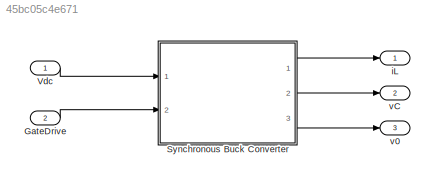
MODEL slx_45bc05c4e671
KIND model
CONFIG AbsTol = auto
CONFIG EnableMultiTasking = off
CONFIG FixedStep = 0.001
CONFIG MaxStep = auto
CONFIG MinStep = auto
CONFIG PostLoadFcn = , if any(exist('dsrtsu_mdlpostloadfcn', 'file') == [2, 3, 6]), try dsrtsu_mdlpostloadfcn('Execute', bdroot); catch fprintf('Error in PostLoadFcn (dsrtsu_mdlpostloadfcn) for model "%s":\n %s\n', bdroot, lasterr); end, end, \n
CONFIG RelTol = 1e-3
CONFIG SampleTimeConstraint = Unconstrained
CONFIG Solver = ode1
CONFIG SolverName = ode1
CONFIG StartTime = 0.0
CONFIG StopTime = Inf
BLOCK [Inport] GateDrive
  IconDisplay = Port number
  Port = 2
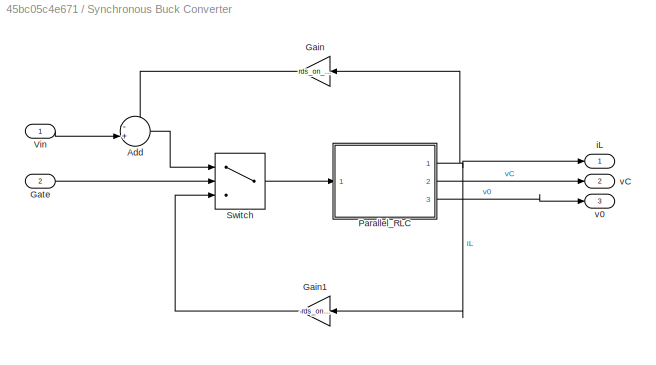
BLOCK [SubSystem] Synchronous Buck Converter
  Ports = [2, 3]
  RequestExecContextInheritance = off
  Variant = off
BLOCK [Sum] Synchronous Buck Converter/Add
  IconShape = round
  InputSameDT = off
  Inputs = -+|
  OutDataTypeStr = Inherit: Inherit via internal rule
  Ports = [2, 1]
  SaturateOnIntegerOverflow = off
BLOCK [Gain] Synchronous Buck Converter/Gain
  Gain = rds_on_sw1
  OutDataTypeStr = Inherit: Inherit via internal rule
  ParamDataTypeStr = Inherit: Inherit via internal rule
  SaturateOnIntegerOverflow = off
BLOCK [Gain] Synchronous Buck Converter/Gain1
  Gain = -rds_on_sw2
  OutDataTypeStr = Inherit: Inherit via internal rule
  ParamDataTypeStr = Inherit: Inherit via internal rule
  SaturateOnIntegerOverflow = off
BLOCK [Inport] Synchronous Buck Converter/Gate
  IconDisplay = Port number
  Port = 2
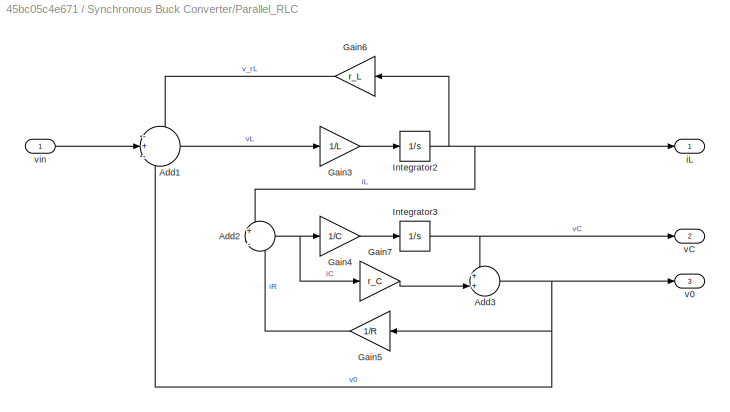
BLOCK [SubSystem] Synchronous Buck Converter/Parallel_RLC
  Ports = [1, 3]
  RequestExecContextInheritance = off
  Variant = off
BLOCK [Sum] Synchronous Buck Converter/Parallel_RLC/Add1
  IconShape = round
  InputSameDT = off
  Inputs = -+-
  OutDataTypeStr = Inherit: Inherit via internal rule
  Ports = [3, 1]
  SaturateOnIntegerOverflow = off
BLOCK [Sum] Synchronous Buck Converter/Parallel_RLC/Add2
  IconShape = round
  InputSameDT = off
  Inputs = +|-
  OutDataTypeStr = Inherit: Inherit via internal rule
  Ports = [2, 1]
  SaturateOnIntegerOverflow = off
BLOCK [Sum] Synchronous Buck Converter/Parallel_RLC/Add3
  IconShape = round
  InputSameDT = off
  Inputs = ++|
  OutDataTypeStr = Inherit: Inherit via internal rule
  Ports = [2, 1]
  SaturateOnIntegerOverflow = off
BLOCK [Gain] Synchronous Buck Converter/Parallel_RLC/Gain3
  Gain = 1/L
  OutDataTypeStr = Inherit: Inherit via internal rule
  ParamDataTypeStr = Inherit: Inherit via internal rule
  SaturateOnIntegerOverflow = off
BLOCK [Gain] Synchronous Buck Converter/Parallel_RLC/Gain4
  Gain = 1/C
  OutDataTypeStr = Inherit: Inherit via internal rule
  ParamDataTypeStr = Inherit: Inherit via internal rule
  SaturateOnIntegerOverflow = off
BLOCK [Gain] Synchronous Buck Converter/Parallel_RLC/Gain5
  Gain = 1/R
  OutDataTypeStr = Inherit: Inherit via internal rule
  ParamDataTypeStr = Inherit: Inherit via internal rule
  SaturateOnIntegerOverflow = off
BLOCK [Gain] Synchronous Buck Converter/Parallel_RLC/Gain6
  Gain = r_L
  OutDataTypeStr = Inherit: Inherit via internal rule
  ParamDataTypeStr = Inherit: Inherit via internal rule
  SaturateOnIntegerOverflow = off
BLOCK [Gain] Synchronous Buck Converter/Parallel_RLC/Gain7
  Gain = r_C
  OutDataTypeStr = Inherit: Inherit via internal rule
  ParamDataTypeStr = Inherit: Inherit via internal rule
  SaturateOnIntegerOverflow = off
BLOCK [Integrator] Synchronous Buck Converter/Parallel_RLC/Integrator2
  InitialCondition = i_L_init
  Ports = [1, 1]
BLOCK [Integrator] Synchronous Buck Converter/Parallel_RLC/Integrator3
  InitialCondition = v_C_init
  Ports = [1, 1]
BLOCK [Outport] Synchronous Buck Converter/Parallel_RLC/iL
  IconDisplay = Port number
BLOCK [Outport] Synchronous Buck Converter/Parallel_RLC/v0
  IconDisplay = Port number
  Port = 3
BLOCK [Outport] Synchronous Buck Converter/Parallel_RLC/vC
  IconDisplay = Port number
  Port = 2
BLOCK [Inport] Synchronous Buck Converter/Parallel_RLC/vin
  IconDisplay = Port number
BLOCK [Switch] Synchronous Buck Converter/Switch
  Criteria = u2 > Threshold
  InputSameDT = off
  SaturateOnIntegerOverflow = off
  Threshold = 0.5
BLOCK [Inport] Synchronous Buck Converter/Vin
  IconDisplay = Port number
BLOCK [Outport] Synchronous Buck Converter/iL
  IconDisplay = Port number
BLOCK [Outport] Synchronous Buck Converter/v0
  IconDisplay = Port number
  Port = 3
BLOCK [Outport] Synchronous Buck Converter/vC
  IconDisplay = Port number
  Port = 2
BLOCK [Inport] Vdc
  IconDisplay = Port number
BLOCK [Outport] iL
  IconDisplay = Port number
BLOCK [Outport] v0
  IconDisplay = Port number
  Port = 3
BLOCK [Outport] vC
  IconDisplay = Port number
  Port = 2
LINE GateDrive:1 -> Synchronous Buck Converter:2
LINE Synchronous Buck Converter/Add:1 -> Synchronous Buck Converter/Switch:1
LINE Synchronous Buck Converter/Gain1:1 -> Synchronous Buck Converter/Switch:3
LINE Synchronous Buck Converter/Gain:1 -> Synchronous Buck Converter/Add:1
LINE Synchronous Buck Converter/Gate:1 -> Synchronous Buck Converter/Switch:2
LINE Synchronous Buck Converter/Parallel_RLC/Add1:1 -> Synchronous Buck Converter/Parallel_RLC/Gain3:1
NET Synchronous Buck Converter/Parallel_RLC/Add2:1 -> Synchronous Buck Converter/Parallel_RLC/Gain4:1, Synchronous Buck Converter/Parallel_RLC/Gain7:1
NET Synchronous Buck Converter/Parallel_RLC/Add3:1 -> Synchronous Buck Converter/Parallel_RLC/Add1:3, Synchronous Buck Converter/Parallel_RLC/Gain5:1, Synchronous Buck Converter/Parallel_RLC/v0:1
LINE Synchronous Buck Converter/Parallel_RLC/Gain3:1 -> Synchronous Buck Converter/Parallel_RLC/Integrator2:1
LINE Synchronous Buck Converter/Parallel_RLC/Gain4:1 -> Synchronous Buck Converter/Parallel_RLC/Integrator3:1
LINE Synchronous Buck Converter/Parallel_RLC/Gain5:1 -> Synchronous Buck Converter/Parallel_RLC/Add2:2
LINE Synchronous Buck Converter/Parallel_RLC/Gain6:1 -> Synchronous Buck Converter/Parallel_RLC/Add1:1
LINE Synchronous Buck Converter/Parallel_RLC/Gain7:1 -> Synchronous Buck Converter/Parallel_RLC/Add3:2
NET Synchronous Buck Converter/Parallel_RLC/Integrator2:1 -> Synchronous Buck Converter/Parallel_RLC/Add2:1, Synchronous Buck Converter/Parallel_RLC/Gain6:1, Synchronous Buck Converter/Parallel_RLC/iL:1
NET Synchronous Buck Converter/Parallel_RLC/Integrator3:1 -> Synchronous Buck Converter/Parallel_RLC/Add3:1, Synchronous Buck Converter/Parallel_RLC/vC:1
LINE Synchronous Buck Converter/Parallel_RLC/vin:1 -> Synchronous Buck Converter/Parallel_RLC/Add1:2
NET Synchronous Buck Converter/Parallel_RLC:1 -> Synchronous Buck Converter/Gain1:1, Synchronous Buck Converter/Gain:1, Synchronous Buck Converter/iL:1
LINE Synchronous Buck Converter/Parallel_RLC:2 -> Synchronous Buck Converter/vC:1
LINE Synchronous Buck Converter/Parallel_RLC:3 -> Synchronous Buck Converter/v0:1
LINE Synchronous Buck Converter/Switch:1 -> Synchronous Buck Converter/Parallel_RLC:1
LINE Synchronous Buck Converter/Vin:1 -> Synchronous Buck Converter/Add:2
LINE Synchronous Buck Converter:1 -> iL:1
LINE Synchronous Buck Converter:2 -> vC:1
LINE Synchronous Buck Converter:3 -> v0:1
LINE Vdc:1 -> Synchronous Buck Converter:1
note: NET lines group one-source signal fan-out (src -> all destinations, sorted); 1:1 wires keep LINE
